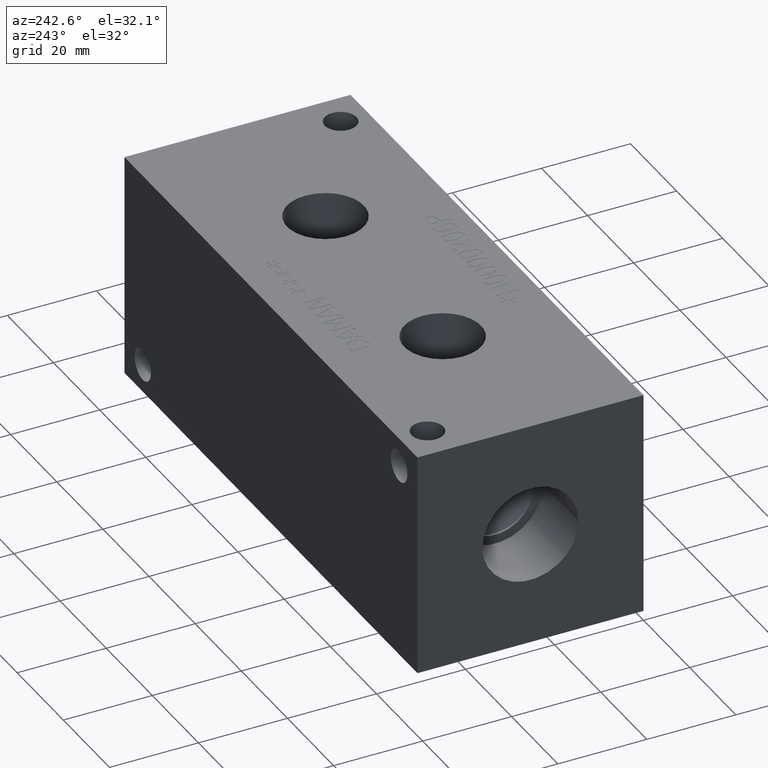
[diagram: clean part render]
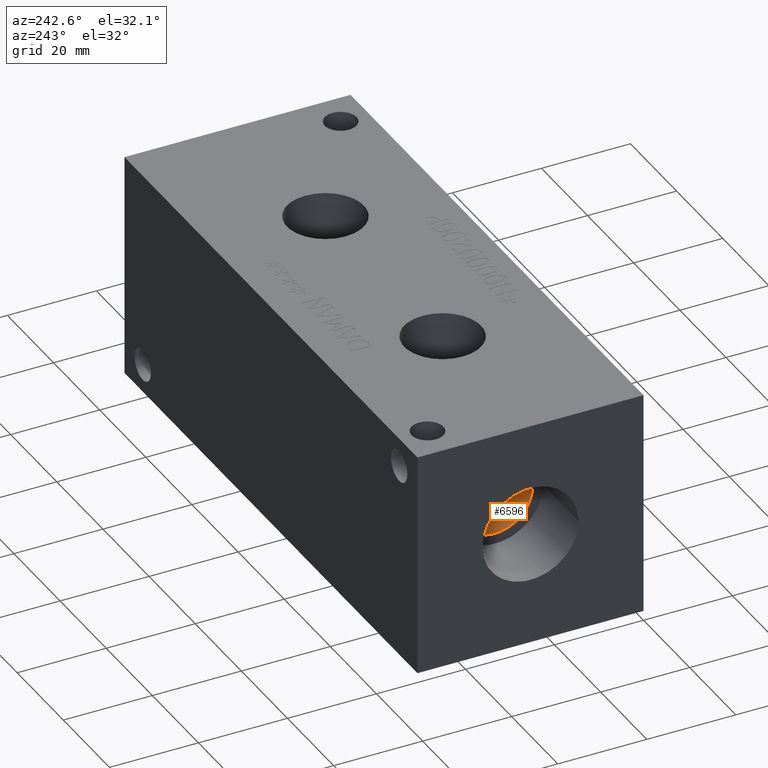
[diagram: same view with one face highlighted and labeled with its STEP entity id]
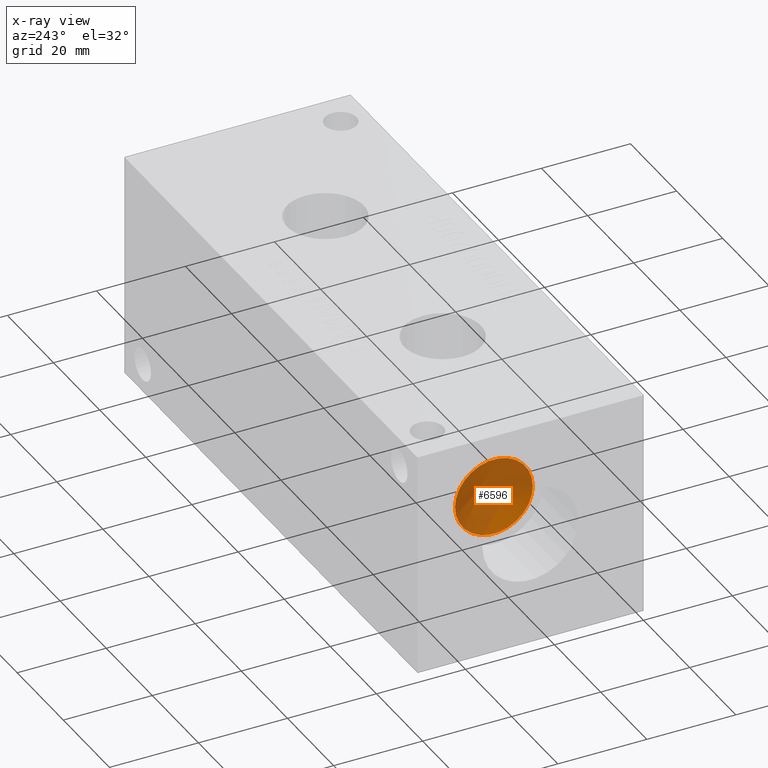
[diagram: x-ray of the same camera — body ghosted, the highlighted face saturated]
A machine part, auxiliary view. The second image highlights one B-rep face of the part: STEP entity #6596.
The next image is the same camera in x-ray: the body ghosted, the highlighted face saturated — about 78% of this face is hidden behind the body in this view.
In plain terms, the highlighted conical surface has half-angle 60 deg.
Its self-contained STEP definition (entity closure, byte-faithful):
#17=CONICAL_SURFACE('',#6879,4.3688,1.0471975511966);
#75=CIRCLE('',#6880,8.7376);
#76=CIRCLE('',#6881,8.7376);
#659=FACE_OUTER_BOUND('',#1029,.T.);
#1029=EDGE_LOOP('',(#5818,#5819,#5820,#5821));
#1682=LINE('',#11284,#2327);
#2327=VECTOR('',#8054,4.3688);
#3144=VERTEX_POINT('',#11280);
#3145=VERTEX_POINT('',#11281);
#3146=VERTEX_POINT('',#11283);
#4043=EDGE_CURVE('',#3144,#3145,#75,.T.);
#4044=EDGE_CURVE('',#3145,#3146,#1682,.T.);
#4045=EDGE_CURVE('',#3145,#3144,#76,.T.);
#5818=ORIENTED_EDGE('',*,*,#4043,.T.);
#5819=ORIENTED_EDGE('',*,*,#4044,.T.);
#5820=ORIENTED_EDGE('',*,*,#4044,.F.);
#5821=ORIENTED_EDGE('',*,*,#4045,.T.);
#6596=ADVANCED_FACE('',(#659),#17,.F.);
#6879=AXIS2_PLACEMENT_3D('',#11279,#8050,#8051);
#6880=AXIS2_PLACEMENT_3D('',#11282,#8052,#8053);
#6881=AXIS2_PLACEMENT_3D('',#11285,#8055,#8056);
#8050=DIRECTION('center_axis',(-1.,0.,0.));
#8051=DIRECTION('ref_axis',(0.,1.,0.));
#8052=DIRECTION('center_axis',(-1.,0.,0.));
#8053=DIRECTION('ref_axis',(0.,1.,0.));
#8054=DIRECTION('',(0.5,0.866025403784439,-1.06057523872491E-16));
#8055=DIRECTION('center_axis',(-1.,0.,0.));
#8056=DIRECTION('ref_axis',(0.,1.,0.));
#11279=CARTESIAN_POINT('Origin',(18.3937978560356,25.4,25.4));
#11280=CARTESIAN_POINT('',(15.87147,34.1376,25.4));
#11281=CARTESIAN_POINT('',(15.87147,16.6624,25.4));
#11282=CARTESIAN_POINT('Origin',(15.87147,25.4,25.4));
#11283=CARTESIAN_POINT('',(20.9161257120713,25.4,25.4));
#11284=CARTESIAN_POINT('',(18.3937978560356,21.0312,25.4));
#11285=CARTESIAN_POINT('Origin',(15.87147,25.4,25.4));